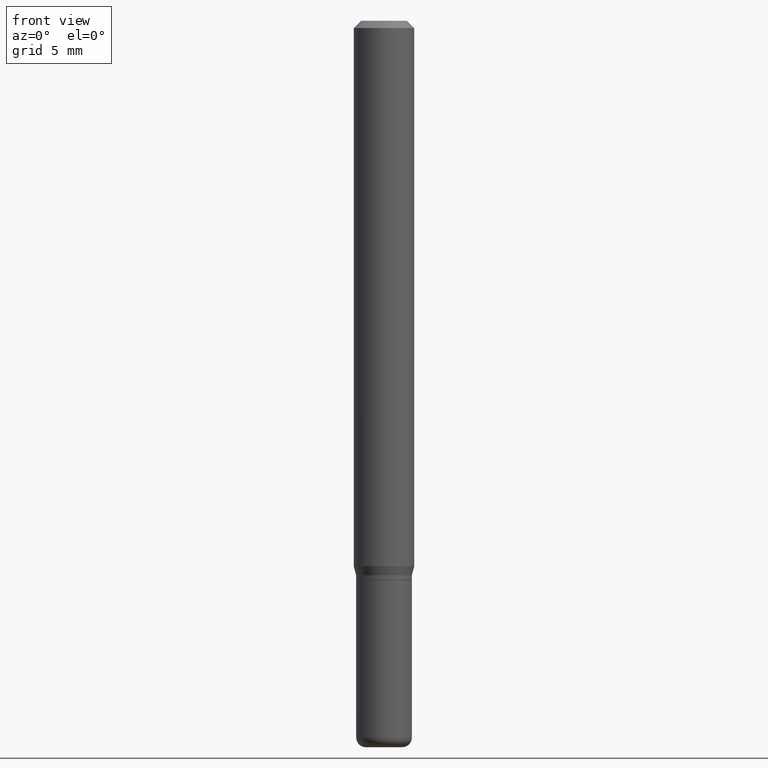
[diagram: clean part render]
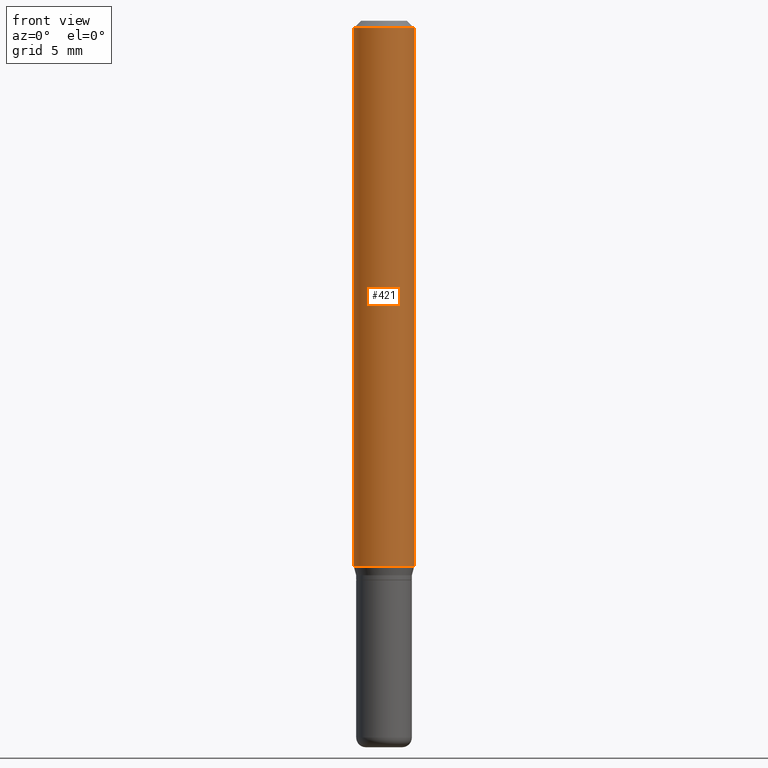
[diagram: same view with one face highlighted and labeled with its STEP entity id]
A machine part, front view. The second image highlights one B-rep face of the part: STEP entity #421.
In plain terms, the highlighted cylindrical surface (edge-blend (fillet) strip) has radius 1.5875 mm, axis along (-0, 0, 1).
Its self-contained STEP definition (entity closure, byte-faithful):
#3 = AXIS2_PLACEMENT_3D ( 'NONE', #147, #298, #456 ) ;
#41 = CARTESIAN_POINT ( 'NONE',  ( 0.06250000000000000000, -4.364351673553916694E-16, 3.047610484872459871E-30 ) ) ;
#60 = AXIS2_PLACEMENT_3D ( 'NONE', #75, #82, #233 ) ;
#73 = VERTEX_POINT ( 'NONE', #445 ) ;
#75 = CARTESIAN_POINT ( 'NONE',  ( 0.000000000000000000, 0.000000000000000000, 0.000000000000000000 ) ) ;
#82 = DIRECTION ( 'NONE',  ( -2.445468806185136597E-29, 3.491481338843145583E-15, 1.000000000000000000 ) ) ;
#84 = DIRECTION ( 'NONE',  ( -2.445468806185136877E-29, 3.491481338843145188E-15, 1.000000000000000000 ) ) ;
#112 = CYLINDRICAL_SURFACE ( 'NONE', #60, 0.06250000000000000000 ) ;
#117 = ORIENTED_EDGE ( 'NONE', *, *, #437, .T. ) ;
#123 = VERTEX_POINT ( 'NONE', #210 ) ;
#147 = CARTESIAN_POINT ( 'NONE',  ( 3.668203209277632395E-31, -5.237222008264614861E-17, -0.01499999999999970281 ) ) ;
#157 = VECTOR ( 'NONE', #84, 39.37007874015748143 ) ;
#158 = CARTESIAN_POINT ( 'NONE',  ( -0.06250000000000000000, -1.548394002303358444E-15, -0.01499999999999970281 ) ) ;
#163 = ORIENTED_EDGE ( 'NONE', *, *, #351, .F. ) ;
#166 = AXIS2_PLACEMENT_3D ( 'NONE', #231, #237, #393 ) ;
#199 = CARTESIAN_POINT ( 'NONE',  ( -0.06250000000000000000, 4.440892098500626162E-16, -3.074334431409316114E-30 ) ) ;
#210 = CARTESIAN_POINT ( 'NONE',  ( 0.06250000000000000000, -4.888073874380378612E-16, -0.01499999999999970281 ) ) ;
#219 = CIRCLE ( 'NONE', #166, 0.06250000000000000000 ) ;
#224 = ORIENTED_EDGE ( 'NONE', *, *, #465, .T. ) ;
#231 = CARTESIAN_POINT ( 'NONE',  ( 2.754428713916943180E-29, -3.932594204224195830E-15, -1.126339745962155803 ) ) ;
#233 = DIRECTION ( 'NONE',  ( 1.000000000000000000, -6.982962677686266711E-15, 4.876176775795935793E-29 ) ) ;
#237 = DIRECTION ( 'NONE',  ( -2.445468806185136597E-29, 3.491481338843145583E-15, 1.000000000000000000 ) ) ;
#238 = EDGE_LOOP ( 'NONE', ( #505, #117, #224, #163 ) ) ;
#298 = DIRECTION ( 'NONE',  ( -2.445468806185136597E-29, 3.491481338843145583E-15, 1.000000000000000000 ) ) ;
#310 = VECTOR ( 'NONE', #475, 39.37007874015748143 ) ;
#351 = EDGE_CURVE ( 'NONE', #391, #123, #453, .T. ) ;
#391 = VERTEX_POINT ( 'NONE', #158 ) ;
#393 = DIRECTION ( 'NONE',  ( 1.000000000000000000, -6.982962677686262766E-15, 0.000000000000000000 ) ) ;
#421 = ADVANCED_FACE ( 'NONE', ( #431 ), #112, .T. ) ;
#431 = FACE_OUTER_BOUND ( 'NONE', #238, .T. ) ;
#434 = CARTESIAN_POINT ( 'NONE',  ( 0.06250000000000000000, -4.369029371579587499E-15, -1.126339745962155803 ) ) ;
#437 = EDGE_CURVE ( 'NONE', #73, #461, #219, .T. ) ;
#443 = EDGE_CURVE ( 'NONE', #73, #391, #517, .T. ) ;
#445 = CARTESIAN_POINT ( 'NONE',  ( -0.06250000000000000000, -3.488504994374132819E-15, -1.126339745962155803 ) ) ;
#453 = CIRCLE ( 'NONE', #3, 0.06250000000000000000 ) ;
#456 = DIRECTION ( 'NONE',  ( 1.000000000000000000, -6.982962677686266711E-15, 0.000000000000000000 ) ) ;
#461 = VERTEX_POINT ( 'NONE', #434 ) ;
#465 = EDGE_CURVE ( 'NONE', #461, #123, #515, .T. ) ;
#475 = DIRECTION ( 'NONE',  ( -2.445468806185136877E-29, 3.491481338843145188E-15, 1.000000000000000000 ) ) ;
#505 = ORIENTED_EDGE ( 'NONE', *, *, #443, .F. ) ;
#515 = LINE ( 'NONE', #41, #157 ) ;
#517 = LINE ( 'NONE', #199, #310 ) ;